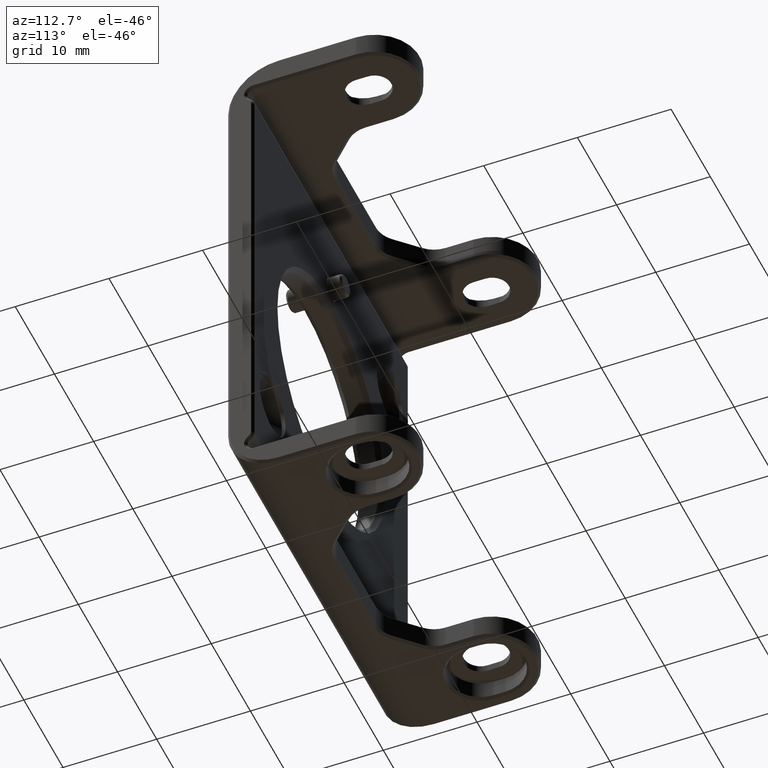
[diagram: clean part render]
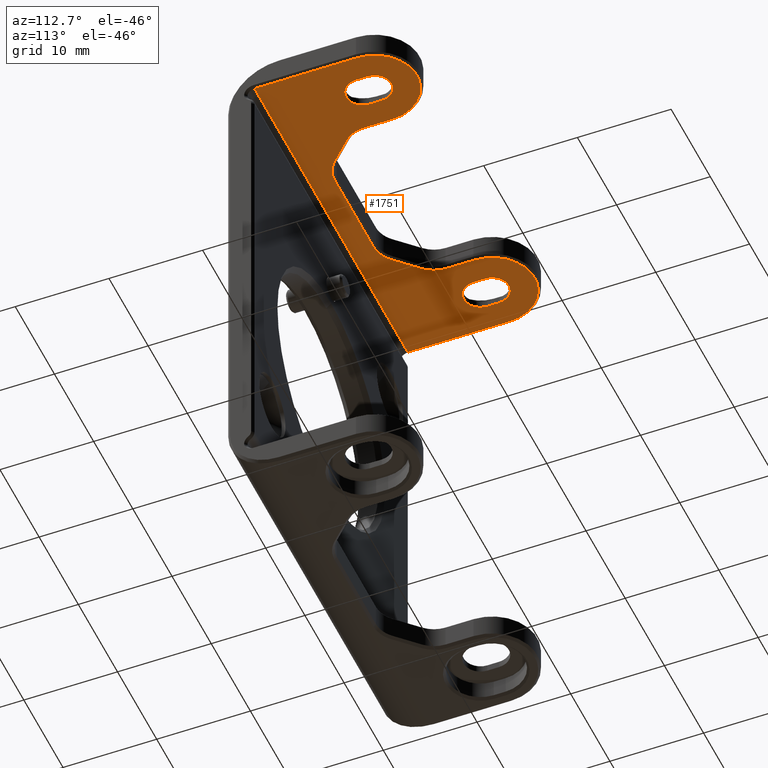
[diagram: same view with one face highlighted and labeled with its STEP entity id]
A machine part, auxiliary view. The second image highlights one B-rep face of the part: STEP entity #1751.
In plain terms, the highlighted planar face has unit normal (-0, 0, 1).
Its self-contained STEP definition (entity closure, byte-faithful):
#61 = CIRCLE ( 'NONE', #8112, 4.550000000000008704 ) ;
#103 = CARTESIAN_POINT ( 'NONE',  ( -4.957359312880709190, 5.250000000000002665, 25.44999999999999929 ) ) ;
#113 = CARTESIAN_POINT ( 'NONE',  ( 16.78000000000000469, 12.44999999999999396, 25.44999999999999929 ) ) ;
#157 = CIRCLE ( 'NONE', #7088, 1.780000000000003801 ) ;
#262 = DIRECTION ( 'NONE',  ( 0.000000000000000000, -0.000000000000000000, -1.000000000000000000 ) ) ;
#317 = EDGE_CURVE ( 'NONE', #7935, #7663, #6513, .T. ) ;
#341 = CARTESIAN_POINT ( 'NONE',  ( 16.78000000000000469, 18.99999999999999289, 25.44999999999999929 ) ) ;
#361 = EDGE_CURVE ( 'NONE', #3160, #4367, #157, .T. ) ;
#365 = CARTESIAN_POINT ( 'NONE',  ( 7.199999999999998401, 10.74264068711929632, 25.44999999999999929 ) ) ;
#442 = DIRECTION ( 'NONE',  ( 1.000000000000000000, 0.000000000000000000, 0.000000000000000000 ) ) ;
#458 = ORIENTED_EDGE ( 'NONE', *, *, #361, .F. ) ;
#462 = CARTESIAN_POINT ( 'NONE',  ( -10.44999999999999041, 10.74264068711929099, 25.44999999999999929 ) ) ;
#506 = DIRECTION ( 'NONE',  ( -1.000000000000000000, -0.000000000000000000, -0.000000000000000000 ) ) ;
#579 = CARTESIAN_POINT ( 'NONE',  ( 10.44999999999999218, 13.71999999999999176, 25.44999999999999929 ) ) ;
#600 = LINE ( 'NONE', #579, #3337 ) ;
#620 = CARTESIAN_POINT ( 'NONE',  ( 19.55000000000000782, 18.99999999999999289, 25.44999999999999929 ) ) ;
#622 = ORIENTED_EDGE ( 'NONE', *, *, #2068, .F. ) ;
#714 = ORIENTED_EDGE ( 'NONE', *, *, #4646, .T. ) ;
#716 = ORIENTED_EDGE ( 'NONE', *, *, #4568, .T. ) ;
#743 = VERTEX_POINT ( 'NONE', #5850 ) ;
#753 = ORIENTED_EDGE ( 'NONE', *, *, #7352, .T. ) ;
#962 = DIRECTION ( 'NONE',  ( 1.000000000000000000, 0.000000000000000000, 0.000000000000000000 ) ) ;
#1019 = ORIENTED_EDGE ( 'NONE', *, *, #317, .T. ) ;
#1045 = VECTOR ( 'NONE', #4960, 999.9999999999998863 ) ;
#1166 = CIRCLE ( 'NONE', #7905, 1.780000000000002025 ) ;
#1250 = CARTESIAN_POINT ( 'NONE',  ( 15.00000000000000000, 12.44999999999999396, 25.44999999999999929 ) ) ;
#1270 = EDGE_CURVE ( 'NONE', #1949, #1393, #4296, .T. ) ;
#1316 = EDGE_CURVE ( 'NONE', #743, #1342, #7058, .T. ) ;
#1342 = VERTEX_POINT ( 'NONE', #4689 ) ;
#1352 = ORIENTED_EDGE ( 'NONE', *, *, #4666, .F. ) ;
#1373 = DIRECTION ( 'NONE',  ( 1.000000000000000000, 0.000000000000000000, 0.000000000000000000 ) ) ;
#1393 = VERTEX_POINT ( 'NONE', #2027 ) ;
#1399 = LINE ( 'NONE', #2850, #5542 ) ;
#1403 = VERTEX_POINT ( 'NONE', #4124 ) ;
#1432 = VERTEX_POINT ( 'NONE', #103 ) ;
#1439 = CARTESIAN_POINT ( 'NONE',  ( -13.21999999999999709, 12.44999999999999396, 25.44999999999999929 ) ) ;
#1478 = CARTESIAN_POINT ( 'NONE',  ( -13.22000000000000597, 18.99999999999994671, 25.44999999999999929 ) ) ;
#1608 = FACE_BOUND ( 'NONE', #3239, .T. ) ;
#1629 = EDGE_CURVE ( 'NONE', #4274, #6710, #4160, .T. ) ;
#1751 = ADVANCED_FACE ( 'NONE', ( #7044, #5424, #1608 ), #4716, .F. ) ;
#1768 = LINE ( 'NONE', #3861, #5488 ) ;
#1772 = VERTEX_POINT ( 'NONE', #6785 ) ;
#1923 = DIRECTION ( 'NONE',  ( 0.000000000000000000, 1.000000000000000000, 0.000000000000000000 ) ) ;
#1949 = VERTEX_POINT ( 'NONE', #5702 ) ;
#1971 = ORIENTED_EDGE ( 'NONE', *, *, #3570, .F. ) ;
#1986 = DIRECTION ( 'NONE',  ( 0.7071067811865461294, 0.7071067811865489050, 0.000000000000000000 ) ) ;
#2021 = AXIS2_PLACEMENT_3D ( 'NONE', #4163, #2890, #2145 ) ;
#2027 = CARTESIAN_POINT ( 'NONE',  ( 19.55000000000000782, 2.799999999999994937, 25.44999999999999929 ) ) ;
#2068 = EDGE_CURVE ( 'NONE', #5585, #4629, #1166, .T. ) ;
#2070 = CARTESIAN_POINT ( 'NONE',  ( -7.199999999999998401, 10.74264068711929099, 25.44999999999999929 ) ) ;
#2114 = DIRECTION ( 'NONE',  ( 1.000000000000000000, 0.000000000000000000, 0.000000000000000000 ) ) ;
#2134 = DIRECTION ( 'NONE',  ( -0.000000000000000000, 0.000000000000000000, 1.000000000000000000 ) ) ;
#2145 = DIRECTION ( 'NONE',  ( 1.000000000000000000, 0.000000000000000000, 0.000000000000000000 ) ) ;
#2179 = LINE ( 'NONE', #5240, #5881 ) ;
#2229 = CIRCLE ( 'NONE', #4485, 3.249999999999992450 ) ;
#2282 = VECTOR ( 'NONE', #8632, 1000.000000000000000 ) ;
#2328 = DIRECTION ( 'NONE',  ( 0.000000000000000000, 1.000000000000000000, 0.000000000000000000 ) ) ;
#2411 = ORIENTED_EDGE ( 'NONE', *, *, #6161, .T. ) ;
#2419 = ORIENTED_EDGE ( 'NONE', *, *, #8019, .F. ) ;
#2482 = CARTESIAN_POINT ( 'NONE',  ( 7.255456351736984999, 6.201902961143725079, 25.44999999999999929 ) ) ;
#2633 = ORIENTED_EDGE ( 'NONE', *, *, #5176, .T. ) ;
#2721 = AXIS2_PLACEMENT_3D ( 'NONE', #3427, #6812, #8144 ) ;
#2771 = EDGE_CURVE ( 'NONE', #1403, #4435, #8558, .T. ) ;
#2784 = CARTESIAN_POINT ( 'NONE',  ( -10.44999999999999041, 13.71999999999999176, 25.44999999999999929 ) ) ;
#2841 = CARTESIAN_POINT ( 'NONE',  ( 13.21999999999999709, 12.44999999999999396, 25.44999999999999929 ) ) ;
#2850 = CARTESIAN_POINT ( 'NONE',  ( -16.78000000000000114, 18.99999999999999289, 25.44999999999999929 ) ) ;
#2890 = DIRECTION ( 'NONE',  ( -0.000000000000000000, 0.000000000000000000, 1.000000000000000000 ) ) ;
#2929 = CARTESIAN_POINT ( 'NONE',  ( -15.00000000000000000, 12.44999999999999396, 25.44999999999999929 ) ) ;
#3017 = CARTESIAN_POINT ( 'NONE',  ( -7.255456351736987664, 6.201902961143725079, 25.44999999999999929 ) ) ;
#3114 = ORIENTED_EDGE ( 'NONE', *, *, #1316, .F. ) ;
#3136 = ORIENTED_EDGE ( 'NONE', *, *, #6772, .F. ) ;
#3160 = VERTEX_POINT ( 'NONE', #113 ) ;
#3168 = AXIS2_PLACEMENT_3D ( 'NONE', #2070, #2134, #1373 ) ;
#3239 = EDGE_LOOP ( 'NONE', ( #3114, #2419, #458, #3136 ) ) ;
#3300 = DIRECTION ( 'NONE',  ( 0.000000000000000000, -0.000000000000000000, -1.000000000000000000 ) ) ;
#3333 = DIRECTION ( 'NONE',  ( 1.365923996832131412E-15, 1.000000000000000000, 0.000000000000000000 ) ) ;
#3337 = VECTOR ( 'NONE', #1923, 1000.000000000000000 ) ;
#3363 = VERTEX_POINT ( 'NONE', #7954 ) ;
#3410 = VECTOR ( 'NONE', #7115, 1000.000000000000000 ) ;
#3424 = ORIENTED_EDGE ( 'NONE', *, *, #5649, .F. ) ;
#3427 = CARTESIAN_POINT ( 'NONE',  ( 19.80000000000000071, 18.99999999999999289, 25.44999999999999929 ) ) ;
#3443 = CIRCLE ( 'NONE', #3168, 3.249999999999993339 ) ;
#3510 = ORIENTED_EDGE ( 'NONE', *, *, #6833, .T. ) ;
#3570 = EDGE_CURVE ( 'NONE', #3363, #5585, #1399, .T. ) ;
#3610 = CARTESIAN_POINT ( 'NONE',  ( -16.78000000000000469, 13.71999999999999353, 25.44999999999999929 ) ) ;
#3637 = LINE ( 'NONE', #1478, #3410 ) ;
#3717 = CARTESIAN_POINT ( 'NONE',  ( -19.55000000000000426, 13.71999999999999353, 25.44999999999999929 ) ) ;
#3769 = DIRECTION ( 'NONE',  ( 0.000000000000000000, -0.000000000000000000, -1.000000000000000000 ) ) ;
#3861 = CARTESIAN_POINT ( 'NONE',  ( 4.957359312880705637, 5.250000000000002665, 25.44999999999999929 ) ) ;
#4024 = CIRCLE ( 'NONE', #4186, 1.780000000000003801 ) ;
#4031 = CARTESIAN_POINT ( 'NONE',  ( -13.21999999999999886, 13.71999999999999353, 25.44999999999999929 ) ) ;
#4053 = ORIENTED_EDGE ( 'NONE', *, *, #1629, .T. ) ;
#4113 = VERTEX_POINT ( 'NONE', #4749 ) ;
#4124 = CARTESIAN_POINT ( 'NONE',  ( -19.54999999999999361, 2.799999999999994937, 25.44999999999999929 ) ) ;
#4160 = LINE ( 'NONE', #5458, #5001 ) ;
#4163 = CARTESIAN_POINT ( 'NONE',  ( -4.957359312880709190, 8.499999999999994671, 25.44999999999999929 ) ) ;
#4186 = AXIS2_PLACEMENT_3D ( 'NONE', #2929, #262, #5019 ) ;
#4202 = VERTEX_POINT ( 'NONE', #6630 ) ;
#4235 = CARTESIAN_POINT ( 'NONE',  ( -19.55000000000000782, 13.71999999999999353, 25.44999999999999929 ) ) ;
#4274 = VERTEX_POINT ( 'NONE', #2784 ) ;
#4296 = LINE ( 'NONE', #620, #2282 ) ;
#4367 = VERTEX_POINT ( 'NONE', #2841 ) ;
#4435 = VERTEX_POINT ( 'NONE', #3717 ) ;
#4485 = AXIS2_PLACEMENT_3D ( 'NONE', #365, #8528, #962 ) ;
#4568 = EDGE_CURVE ( 'NONE', #8603, #1949, #61, .T. ) ;
#4629 = VERTEX_POINT ( 'NONE', #4031 ) ;
#4646 = EDGE_CURVE ( 'NONE', #6646, #1432, #5425, .T. ) ;
#4666 = EDGE_CURVE ( 'NONE', #4629, #5027, #3637, .T. ) ;
#4689 = CARTESIAN_POINT ( 'NONE',  ( 16.78000000000000469, 13.71999999999999353, 25.44999999999999929 ) ) ;
#4711 = ORIENTED_EDGE ( 'NONE', *, *, #8769, .T. ) ;
#4716 = PLANE ( 'NONE',  #2721 ) ;
#4749 = CARTESIAN_POINT ( 'NONE',  ( 4.957359312880705637, 5.250000000000001776, 25.44999999999999929 ) ) ;
#4786 = CARTESIAN_POINT ( 'NONE',  ( 15.00000000000000000, 13.71999999999999353, 25.44999999999999929 ) ) ;
#4859 = LINE ( 'NONE', #5047, #1045 ) ;
#4881 = CARTESIAN_POINT ( 'NONE',  ( 4.957359312880705637, 8.499999999999994671, 25.44999999999999929 ) ) ;
#4900 = AXIS2_PLACEMENT_3D ( 'NONE', #4881, #7047, #8358 ) ;
#4919 = VECTOR ( 'NONE', #8386, 1000.000000000000000 ) ;
#4960 = DIRECTION ( 'NONE',  ( 0.7071067811865463515, -0.7071067811865487940, 0.000000000000000000 ) ) ;
#4973 = DIRECTION ( 'NONE',  ( 0.000000000000000000, -1.000000000000000000, 0.000000000000000000 ) ) ;
#4979 = EDGE_CURVE ( 'NONE', #6710, #1772, #3443, .T. ) ;
#5001 = VECTOR ( 'NONE', #7636, 1000.000000000000000 ) ;
#5019 = DIRECTION ( 'NONE',  ( 1.000000000000000000, 0.000000000000000000, 0.000000000000000000 ) ) ;
#5027 = VERTEX_POINT ( 'NONE', #1439 ) ;
#5047 = CARTESIAN_POINT ( 'NONE',  ( -7.255456351736991216, 6.201902961143726856, 25.44999999999999929 ) ) ;
#5102 = CARTESIAN_POINT ( 'NONE',  ( 10.44999999999999041, 13.71999999999999176, 25.44999999999999929 ) ) ;
#5176 = EDGE_CURVE ( 'NONE', #4435, #4274, #6656, .T. ) ;
#5240 = CARTESIAN_POINT ( 'NONE',  ( 19.80000000000000071, 2.799999999999994937, 25.44999999999999929 ) ) ;
#5333 = DIRECTION ( 'NONE',  ( 1.000000000000000000, 0.000000000000000000, 0.000000000000000000 ) ) ;
#5335 = CARTESIAN_POINT ( 'NONE',  ( 13.22000000000000597, 19.00000000000000355, 25.44999999999999929 ) ) ;
#5424 = FACE_OUTER_BOUND ( 'NONE', #7300, .T. ) ;
#5425 = CIRCLE ( 'NONE', #2021, 3.249999999999993339 ) ;
#5455 = ORIENTED_EDGE ( 'NONE', *, *, #5628, .T. ) ;
#5458 = CARTESIAN_POINT ( 'NONE',  ( -10.44999999999999041, 10.74264068711929099, 25.44999999999999929 ) ) ;
#5488 = VECTOR ( 'NONE', #8621, 1000.000000000000000 ) ;
#5531 = VECTOR ( 'NONE', #3333, 1000.000000000000000 ) ;
#5542 = VECTOR ( 'NONE', #2328, 1000.000000000000000 ) ;
#5585 = VERTEX_POINT ( 'NONE', #3610 ) ;
#5628 = EDGE_CURVE ( 'NONE', #1772, #6646, #4859, .T. ) ;
#5649 = EDGE_CURVE ( 'NONE', #5027, #3363, #4024, .T. ) ;
#5702 = CARTESIAN_POINT ( 'NONE',  ( 19.55000000000000782, 13.71999999999999353, 25.44999999999999929 ) ) ;
#5733 = AXIS2_PLACEMENT_3D ( 'NONE', #7819, #8509, #7166 ) ;
#5850 = CARTESIAN_POINT ( 'NONE',  ( 13.21999999999999886, 13.71999999999999353, 25.44999999999999929 ) ) ;
#5881 = VECTOR ( 'NONE', #506, 1000.000000000000000 ) ;
#5918 = ORIENTED_EDGE ( 'NONE', *, *, #1270, .T. ) ;
#6113 = VECTOR ( 'NONE', #4973, 1000.000000000000000 ) ;
#6121 = ORIENTED_EDGE ( 'NONE', *, *, #6372, .T. ) ;
#6161 = EDGE_CURVE ( 'NONE', #7663, #4202, #2229, .T. ) ;
#6369 = ORIENTED_EDGE ( 'NONE', *, *, #2771, .T. ) ;
#6372 = EDGE_CURVE ( 'NONE', #1432, #4113, #1768, .T. ) ;
#6482 = CIRCLE ( 'NONE', #4900, 3.249999999999992450 ) ;
#6513 = LINE ( 'NONE', #6694, #7767 ) ;
#6630 = CARTESIAN_POINT ( 'NONE',  ( 10.44999999999999218, 10.74264068711929632, 25.44999999999999929 ) ) ;
#6646 = VERTEX_POINT ( 'NONE', #3017 ) ;
#6656 = CIRCLE ( 'NONE', #5733, 4.550000000000005151 ) ;
#6660 = DIRECTION ( 'NONE',  ( 0.000000000000000000, -0.000000000000000000, -1.000000000000000000 ) ) ;
#6694 = CARTESIAN_POINT ( 'NONE',  ( 9.498097038856279539, 8.444543648263028501, 25.44999999999999929 ) ) ;
#6710 = VERTEX_POINT ( 'NONE', #462 ) ;
#6749 = DIRECTION ( 'NONE',  ( 0.000000000000000000, -0.000000000000000000, -1.000000000000000000 ) ) ;
#6772 = EDGE_CURVE ( 'NONE', #1342, #3160, #8433, .T. ) ;
#6785 = CARTESIAN_POINT ( 'NONE',  ( -9.498097038856277763, 8.444543648263021396, 25.44999999999999929 ) ) ;
#6812 = DIRECTION ( 'NONE',  ( -0.000000000000000000, 0.000000000000000000, 1.000000000000000000 ) ) ;
#6833 = EDGE_CURVE ( 'NONE', #1393, #1403, #2179, .T. ) ;
#7044 = FACE_BOUND ( 'NONE', #7073, .T. ) ;
#7047 = DIRECTION ( 'NONE',  ( -0.000000000000000000, 0.000000000000000000, 1.000000000000000000 ) ) ;
#7058 = CIRCLE ( 'NONE', #7333, 1.780000000000003801 ) ;
#7073 = EDGE_LOOP ( 'NONE', ( #622, #1971, #3424, #1352 ) ) ;
#7088 = AXIS2_PLACEMENT_3D ( 'NONE', #1250, #6660, #7452 ) ;
#7115 = DIRECTION ( 'NONE',  ( 1.365923996832131412E-15, -1.000000000000000000, 0.000000000000000000 ) ) ;
#7166 = DIRECTION ( 'NONE',  ( 1.000000000000000000, 0.000000000000000000, 0.000000000000000000 ) ) ;
#7234 = CARTESIAN_POINT ( 'NONE',  ( -15.00000000000000000, 13.71999999999999353, 25.44999999999999929 ) ) ;
#7300 = EDGE_LOOP ( 'NONE', ( #3510, #6369, #2633, #4053, #7308, #5455, #714, #6121, #4711, #1019, #2411, #753, #716, #5918 ) ) ;
#7308 = ORIENTED_EDGE ( 'NONE', *, *, #4979, .T. ) ;
#7333 = AXIS2_PLACEMENT_3D ( 'NONE', #8731, #3300, #5333 ) ;
#7352 = EDGE_CURVE ( 'NONE', #4202, #8603, #600, .T. ) ;
#7452 = DIRECTION ( 'NONE',  ( 1.000000000000000000, 0.000000000000000000, 0.000000000000000000 ) ) ;
#7550 = LINE ( 'NONE', #5335, #5531 ) ;
#7636 = DIRECTION ( 'NONE',  ( 0.000000000000000000, -1.000000000000000000, 0.000000000000000000 ) ) ;
#7663 = VERTEX_POINT ( 'NONE', #8282 ) ;
#7767 = VECTOR ( 'NONE', #1986, 1000.000000000000114 ) ;
#7819 = CARTESIAN_POINT ( 'NONE',  ( -15.00000000000000000, 13.71999999999999353, 25.44999999999999929 ) ) ;
#7905 = AXIS2_PLACEMENT_3D ( 'NONE', #7234, #3769, #442 ) ;
#7935 = VERTEX_POINT ( 'NONE', #2482 ) ;
#7954 = CARTESIAN_POINT ( 'NONE',  ( -16.78000000000000114, 12.44999999999999396, 25.44999999999999929 ) ) ;
#8019 = EDGE_CURVE ( 'NONE', #4367, #743, #7550, .T. ) ;
#8112 = AXIS2_PLACEMENT_3D ( 'NONE', #4786, #6749, #2114 ) ;
#8144 = DIRECTION ( 'NONE',  ( 1.000000000000000000, 0.000000000000000000, 0.000000000000000000 ) ) ;
#8282 = CARTESIAN_POINT ( 'NONE',  ( 9.498097038856277763, 8.444543648263026725, 25.44999999999999929 ) ) ;
#8358 = DIRECTION ( 'NONE',  ( 1.000000000000000000, 0.000000000000000000, 0.000000000000000000 ) ) ;
#8386 = DIRECTION ( 'NONE',  ( 0.000000000000000000, 1.000000000000000000, 0.000000000000000000 ) ) ;
#8433 = LINE ( 'NONE', #341, #6113 ) ;
#8509 = DIRECTION ( 'NONE',  ( 0.000000000000000000, -0.000000000000000000, -1.000000000000000000 ) ) ;
#8528 = DIRECTION ( 'NONE',  ( -0.000000000000000000, 0.000000000000000000, 1.000000000000000000 ) ) ;
#8558 = LINE ( 'NONE', #4235, #4919 ) ;
#8603 = VERTEX_POINT ( 'NONE', #5102 ) ;
#8621 = DIRECTION ( 'NONE',  ( 1.000000000000000000, 0.000000000000000000, 0.000000000000000000 ) ) ;
#8632 = DIRECTION ( 'NONE',  ( 0.000000000000000000, -1.000000000000000000, 0.000000000000000000 ) ) ;
#8731 = CARTESIAN_POINT ( 'NONE',  ( 15.00000000000000000, 13.71999999999999353, 25.44999999999999929 ) ) ;
#8769 = EDGE_CURVE ( 'NONE', #4113, #7935, #6482, .T. ) ;